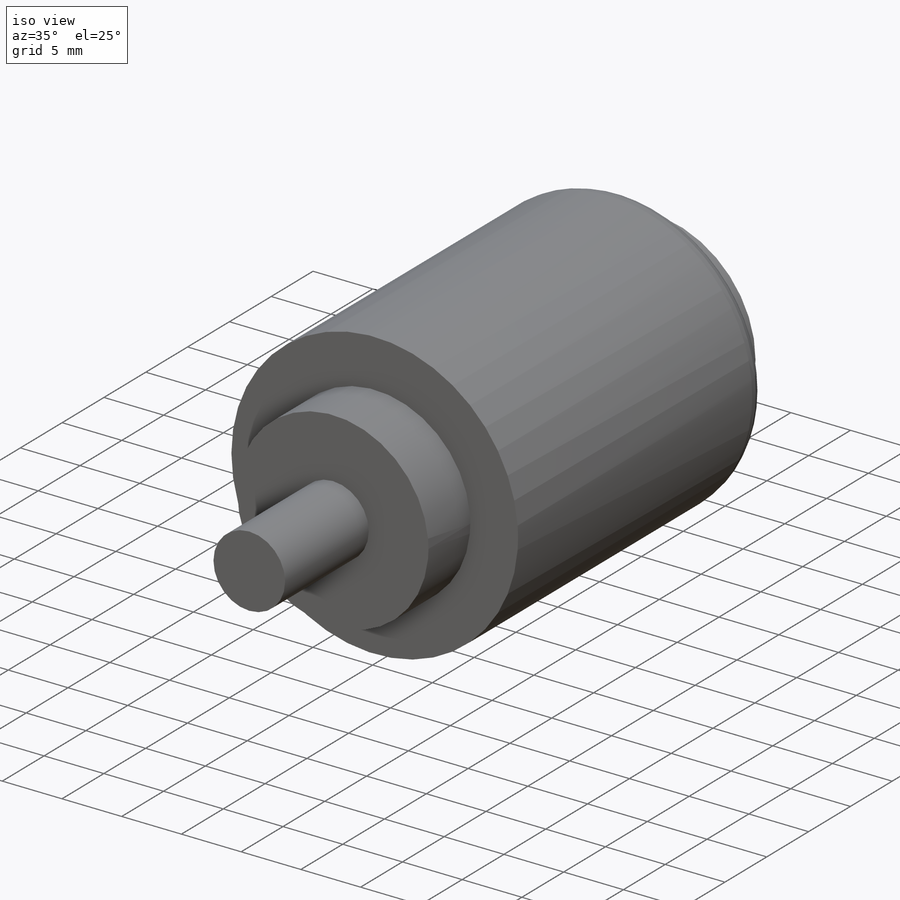
[diagram: iso view]
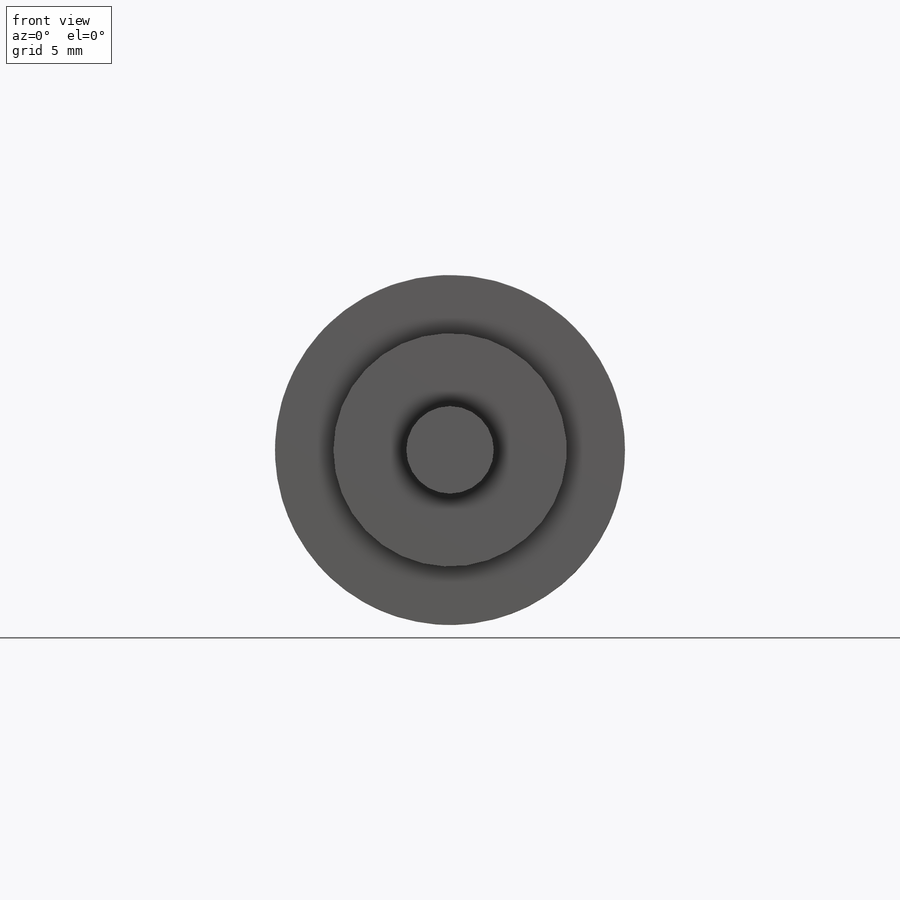
[diagram: front view]
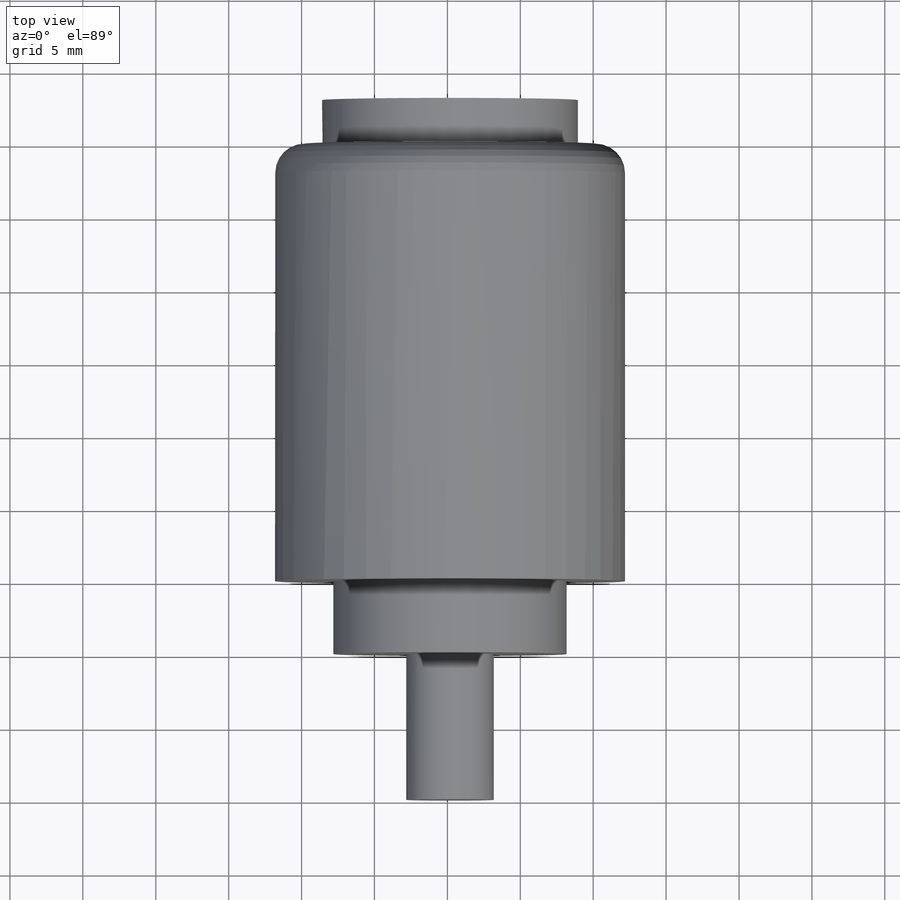
[diagram: top view]
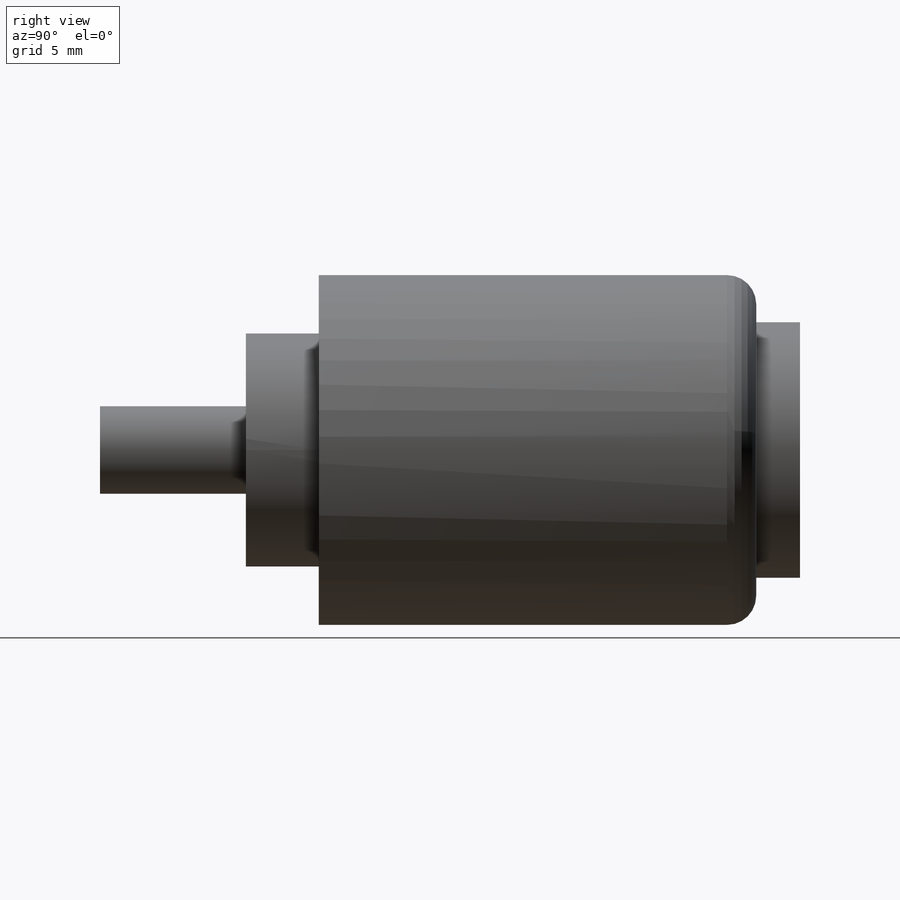
[diagram: right view]
SOLIDWORKS PART (.sldprt)
format: sldprt  version: not decoded by parser v0  size: 188,928 bytes
history: native  units: mm
features: sketch x5, extrude x4, material x1, cut_extrude x1, fillet x1 (+11 scaffold rows collapsed)
feature tree (23):
  scaffold x11  (default folders/planes/origin — collapsed)
  material  "Material <not specified>"
  sketch  "Sketch1"  dims[D1=15.0mm]
  extrude  "Boss-Extrude1"  Depth=30mm
  sketch  "Sketch2"  dims[D1=12.0mm]
  extrude  "Boss-Extrude2"  Depth=5mm
  sketch  "Sketch4"  dims[c1.D1=~11.27046mm c2.D1=4.0]
  cut_extrude  "Cut-Extrude3"  Depth=3mm
  sketch  "Sketch5"  dims[D1=~2.996944mm]
  extrude  "Boss-Extrude3"  Depth=10mm
  sketch  "Sketch6"
  extrude  "Boss-Extrude4"  Depth=3mm
  fillet  "Fillet1"  Radius=2mm
decode coverage: 10 of 11 modeling features carry decoded parameters
note: ~ marks probable driven/reference dimensions
note: suppression state not decoded; provenance and decode notes live in map.json
